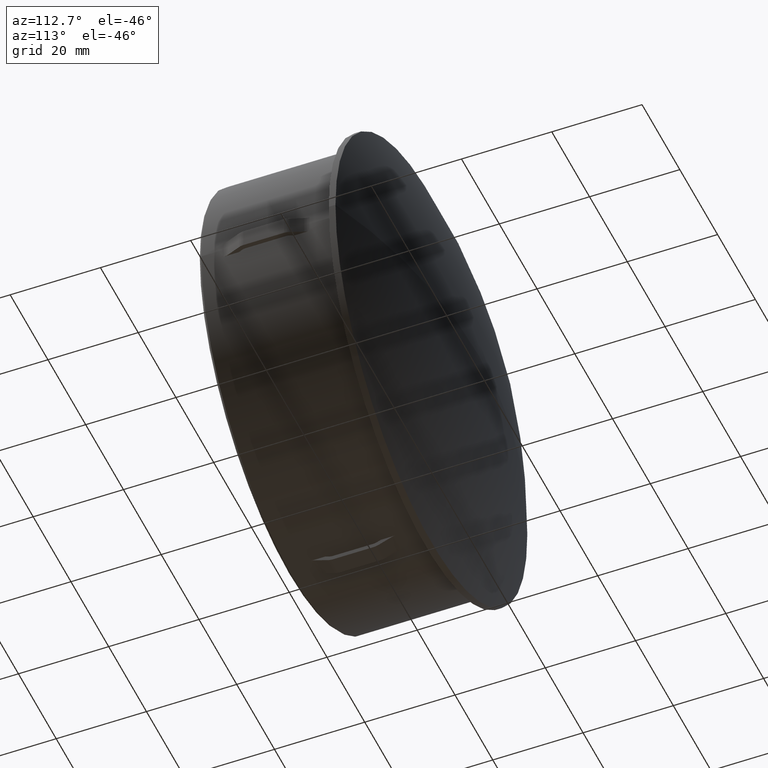
[diagram: clean part render]
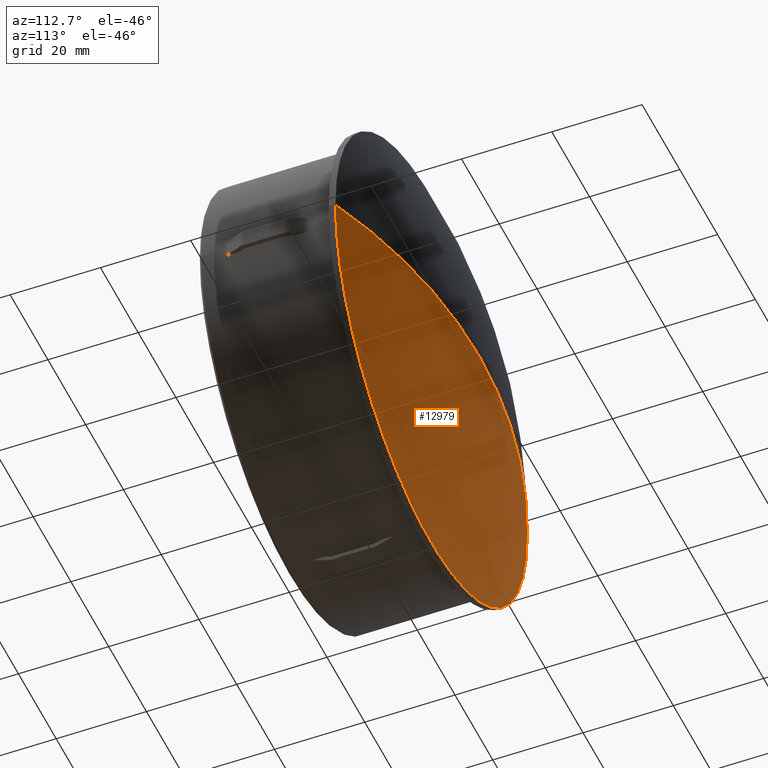
[diagram: same view with one face highlighted and labeled with its STEP entity id]
A machine part, auxiliary view. The second image highlights one B-rep face of the part: STEP entity #12979.
In plain terms, the highlighted spherical surface has radius 128.138 mm.
Its self-contained STEP definition (entity closure, byte-faithful):
#446 = CARTESIAN_POINT ( 'NONE',  ( -6.545670421888859400E-013, 41.99999999999999300, 0.0000000000000000000 ) ) ;
#609 = DIRECTION ( 'NONE',  ( 1.000000000000000000, 0.0000000000000000000, -1.224646799147353200E-016 ) ) ;
#820 = AXIS2_PLACEMENT_3D ( 'NONE', #3380, #4427, #7924 ) ;
#1629 = EDGE_LOOP ( 'NONE', ( #4660, #11637, #11835 ) ) ;
#2700 = SPHERICAL_SURFACE ( 'NONE', #8652, 128.1376190476191300 ) ;
#2907 = VERTEX_POINT ( 'NONE', #3666 ) ;
#3020 = CIRCLE ( 'NONE', #820, 128.1376190476191300 ) ;
#3061 = CARTESIAN_POINT ( 'NONE',  ( 0.0000000000000000000, -86.13761904761911100, 0.0000000000000000000 ) ) ;
#3084 = CARTESIAN_POINT ( 'NONE',  ( 5.428022418640887400E-014, 31.49999999999973700, 0.0000000000000000000 ) ) ;
#3380 = CARTESIAN_POINT ( 'NONE',  ( 0.0000000000000000000, -86.13761904761911100, 0.0000000000000000000 ) ) ;
#3666 = CARTESIAN_POINT ( 'NONE',  ( 50.79999999999999700, 31.49999999999999300, 0.0000000000000000000 ) ) ;
#4232 = DIRECTION ( 'NONE',  ( 5.169545160610235800E-015, -1.000000000000000000, -0.0000000000000000000 ) ) ;
#4245 = EDGE_CURVE ( 'NONE', #10078, #2907, #8763, .T. ) ;
#4427 = DIRECTION ( 'NONE',  ( 0.0000000000000000000, 0.0000000000000000000, -1.000000000000000000 ) ) ;
#4660 = ORIENTED_EDGE ( 'NONE', *, *, #4924, .F. ) ;
#4924 = EDGE_CURVE ( 'NONE', #9862, #10078, #9299, .T. ) ;
#5263 = CARTESIAN_POINT ( 'NONE',  ( 0.0000000000000000000, -86.13761904761911100, 0.0000000000000000000 ) ) ;
#6297 = AXIS2_PLACEMENT_3D ( 'NONE', #5263, #14308, #609 ) ;
#6447 = FACE_OUTER_BOUND ( 'NONE', #1629, .T. ) ;
#6643 = EDGE_CURVE ( 'NONE', #9862, #2907, #3020, .T. ) ;
#7924 = DIRECTION ( 'NONE',  ( -1.000000000000000000, 0.0000000000000000000, 0.0000000000000000000 ) ) ;
#8652 = AXIS2_PLACEMENT_3D ( 'NONE', #3061, #8803, #9840 ) ;
#8763 = CIRCLE ( 'NONE', #14125, 50.79999999999994000 ) ;
#8803 = DIRECTION ( 'NONE',  ( 0.0000000000000000000, -0.0000000000000000000, 1.000000000000000000 ) ) ;
#9299 = CIRCLE ( 'NONE', #6297, 128.1376190476191300 ) ;
#9300 = CARTESIAN_POINT ( 'NONE',  ( -50.80000000000055100, 31.49999999999947400, 6.221205739668546600E-015 ) ) ;
#9840 = DIRECTION ( 'NONE',  ( 1.000000000000000000, 5.198581179563997300E-015, 0.0000000000000000000 ) ) ;
#9862 = VERTEX_POINT ( 'NONE', #446 ) ;
#9946 = DIRECTION ( 'NONE',  ( 1.000000000000000000, 5.190511187962106200E-015, 0.0000000000000000000 ) ) ;
#10078 = VERTEX_POINT ( 'NONE', #9300 ) ;
#11637 = ORIENTED_EDGE ( 'NONE', *, *, #6643, .T. ) ;
#11835 = ORIENTED_EDGE ( 'NONE', *, *, #4245, .F. ) ;
#12979 = ADVANCED_FACE ( 'NONE', ( #6447 ), #2700, .T. ) ;
#14125 = AXIS2_PLACEMENT_3D ( 'NONE', #3084, #4232, #9946 ) ;
#14308 = DIRECTION ( 'NONE',  ( 1.224646799147353200E-016, 6.330866933989015100E-031, 1.000000000000000000 ) ) ;